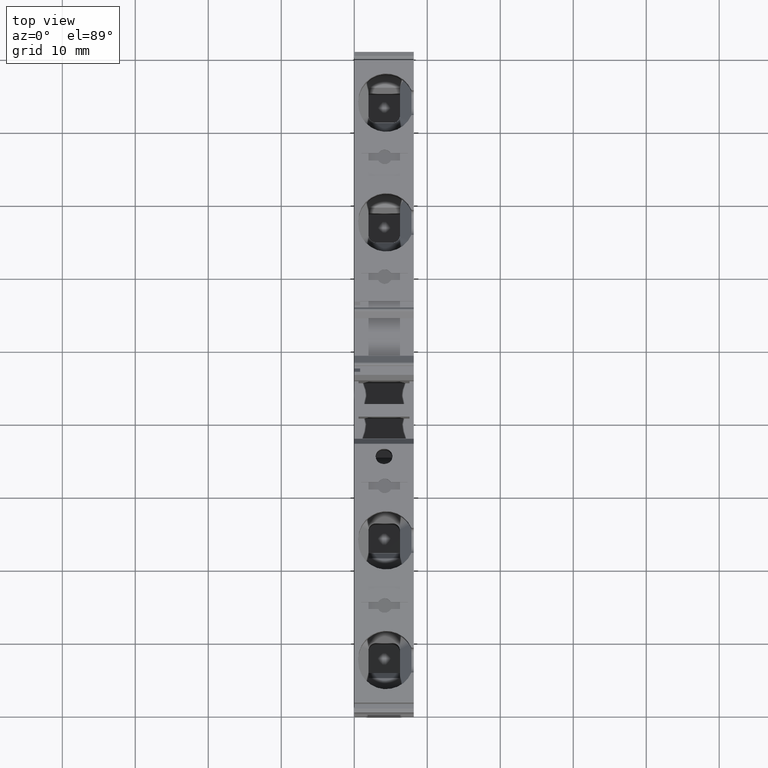
[diagram: clean part render]
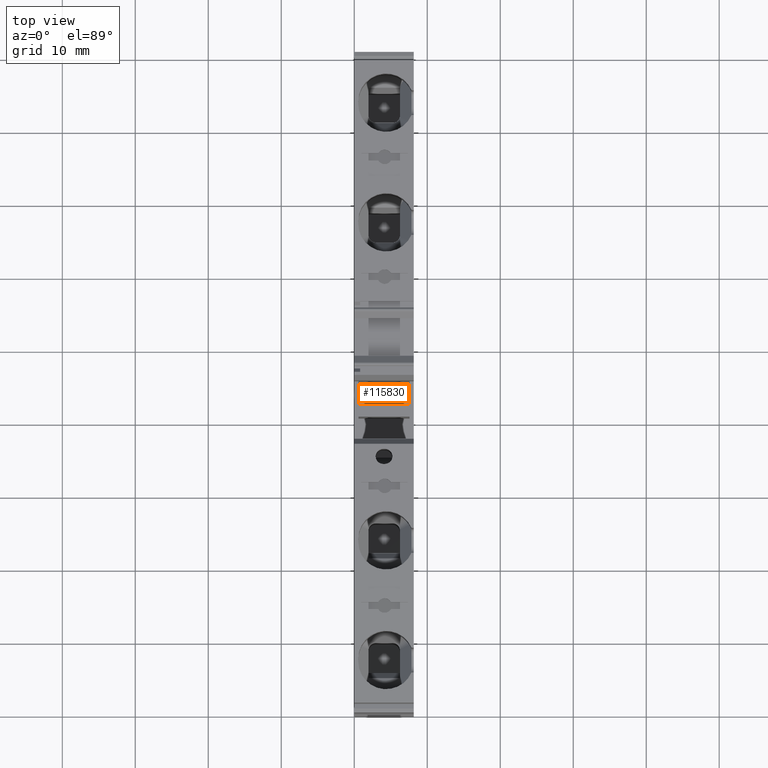
[diagram: same view with one face highlighted and labeled with its STEP entity id]
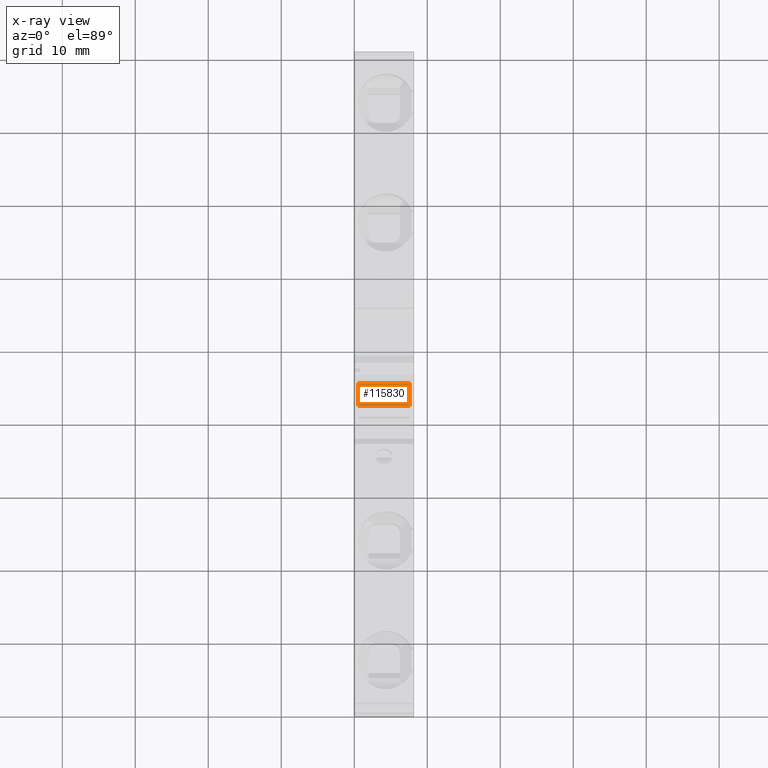
[diagram: x-ray of the same camera — body ghosted, the highlighted face saturated]
A machine part, top view. The second image highlights one B-rep face of the part: STEP entity #115830.
The next image is the same camera in x-ray: the body ghosted, the highlighted face saturated — about 9% of this face is hidden behind the body in this view.
In plain terms, the highlighted planar face has unit normal (-0, 0, 1).
Its self-contained STEP definition (entity closure, byte-faithful):
#30200=CARTESIAN_POINT('',(0.932167221626293,-27.0000000100475,
53.0949999996222));
#30210=VERTEX_POINT('',#30200);
#30240=CARTESIAN_POINT('',(0.932167221479451,-27.0000000100605,
-0.300000004725767));
#30250=DIRECTION('',(-2.75006672874048E-12,-2.44583918945662E-13,-1.));
#30260=VECTOR('',#30250,1.);
#30270=LINE('',#30240,#30260);
#30280=CARTESIAN_POINT('',(0.932167221607041,-27.0000000100492,
46.0949999996078));
#30290=VERTEX_POINT('',#30280);
#30300=EDGE_CURVE('',#30210,#30290,#30270,.T.);
#114250=CARTESIAN_POINT('',(30.6454916986733,-27.0000000196824,
46.0949999995261));
#114260=DIRECTION('',(-1.,3.24206978070956E-10,2.75006672874053E-12));
#114270=VECTOR('',#114260,1.);
#114280=LINE('',#114250,#114270);
#114290=CARTESIAN_POINT('',(-2.21783277839159,-27.0000000090279,
46.0949999996165));
#114300=VERTEX_POINT('',#114290);
#114310=EDGE_CURVE('',#30290,#114300,#114280,.T.);
#114590=CARTESIAN_POINT('',(-2.21783277837235,-27.0000000090262,
53.0949999996309));
#114600=VERTEX_POINT('',#114590);
#114630=CARTESIAN_POINT('',(30.6454916989124,-27.0000000196807,
53.0949999995405));
#114640=DIRECTION('',(1.,-3.24206978070956E-10,-2.75006672874053E-12));
#114650=VECTOR('',#114640,1.);
#114660=LINE('',#114630,#114650);
#114670=EDGE_CURVE('',#114600,#30210,#114660,.T.);
#115670=CARTESIAN_POINT('',(-10.6738301867192,-27.0000000062856,
49.3199999966588));
#115680=DIRECTION('',(3.24206978070955E-10,1.,-2.44583919837257E-13));
#115690=DIRECTION('',(1.,-3.24206978070954E-10,6.00957767029567E-12));
#115700=AXIS2_PLACEMENT_3D('',#115670,#115680,#115690);
#115710=PLANE('',#115700);
#115720=ORIENTED_EDGE('',*,*,#114310,.T.);
#115730=ORIENTED_EDGE('',*,*,#30300,.T.);
#115740=ORIENTED_EDGE('',*,*,#114670,.T.);
#115750=CARTESIAN_POINT('',(-2.21783277851919,-27.0000000090393,
-0.300000004618154));
#115760=DIRECTION('',(2.75006672874048E-12,2.44583918945662E-13,1.));
#115770=VECTOR('',#115760,1.);
#115780=LINE('',#115750,#115770);
#115790=EDGE_CURVE('',#114300,#114600,#115780,.T.);
#115800=ORIENTED_EDGE('',*,*,#115790,.T.);
#115810=EDGE_LOOP('',(#115800,#115740,#115730,#115720));
#115820=FACE_OUTER_BOUND('',#115810,.T.);
#115830=ADVANCED_FACE('',(#115820),#115710,.T.);